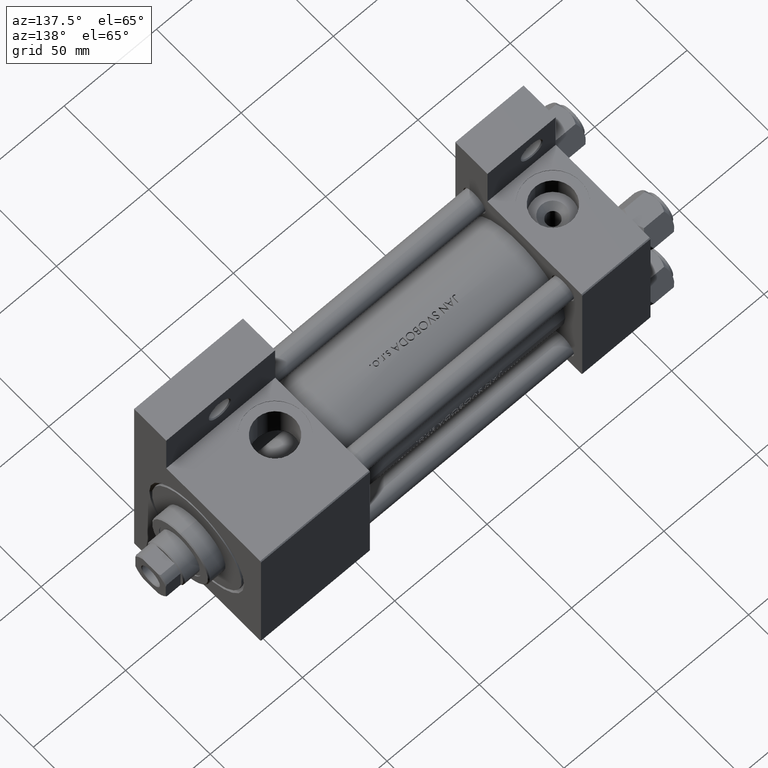
[diagram: clean part render]
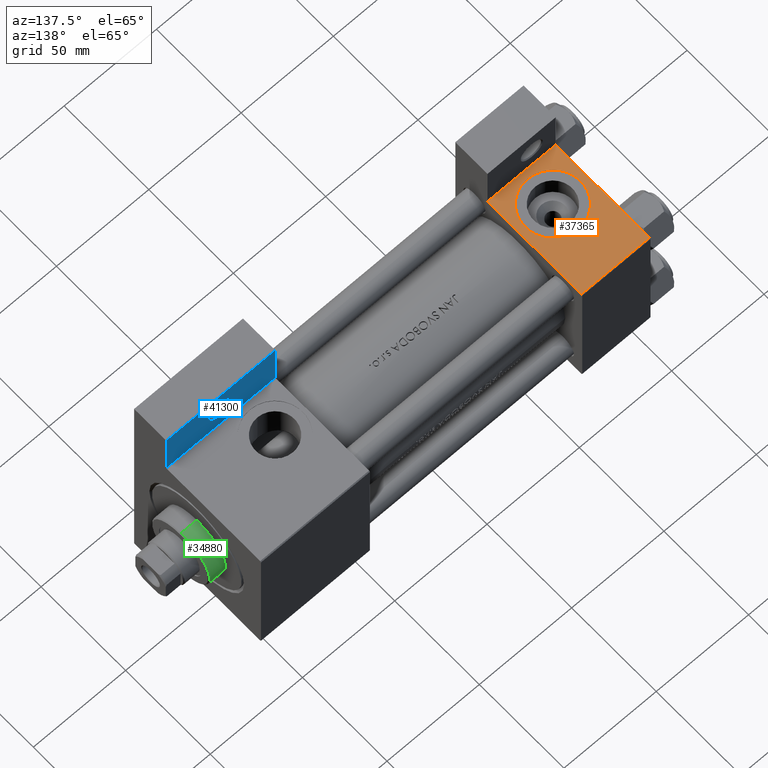
[diagram: same view with three faces highlighted in distinct colors, each labeled with its STEP entity id]
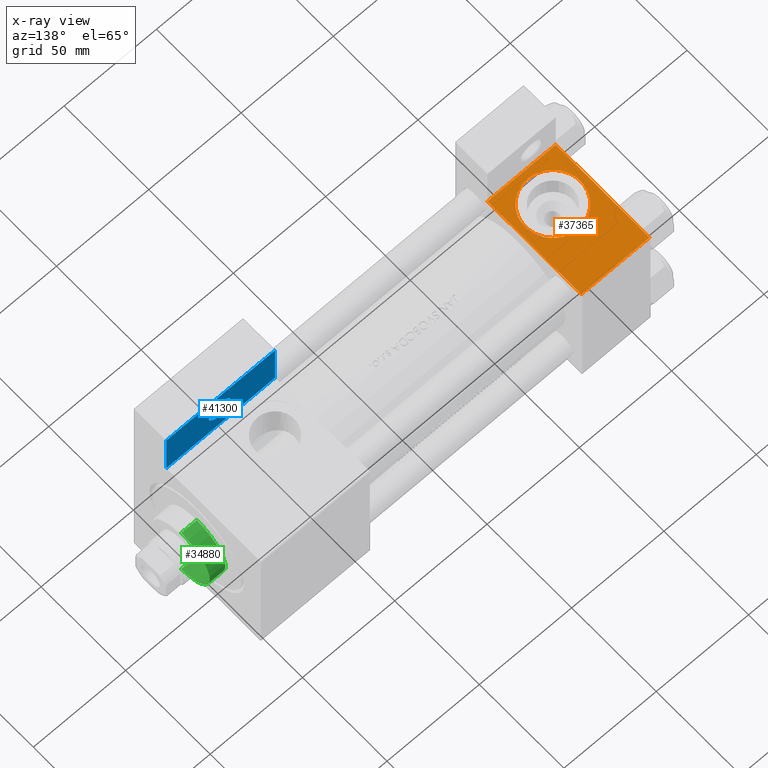
[diagram: x-ray of the same camera — body ghosted, the three highlighted faces saturated]
A machine part, auxiliary view with three faces highlighted in distinct colors.
The next image is the same camera in x-ray (body ghosted, the three faces saturated) — at least one of them is partly hidden behind the body in this view.
Their STEP definitions:

[orange] entity #37365 — the highlighted planar face has unit normal (0, 0, -1).
#794 = LINE ( 'NONE', #7530, #46439 ) ;
#1001 = EDGE_CURVE ( 'NONE', #5162, #34275, #794, .T. ) ;
#1204 = DIRECTION ( 'NONE',  ( 0.000000000000000000, 0.000000000000000000, -1.000000000000000000 ) ) ;
#2792 = EDGE_CURVE ( 'NONE', #46838, #9258, #18689, .T. ) ;
#3631 = ORIENTED_EDGE ( 'NONE', *, *, #1001, .F. ) ;
#5162 = VERTEX_POINT ( 'NONE', #26489 ) ;
#6031 = LINE ( 'NONE', #17260, #37356 ) ;
#6178 = EDGE_CURVE ( 'NONE', #39855, #48175, #19350, .T. ) ;
#7530 = CARTESIAN_POINT ( 'NONE',  ( -7.145701223179000102E-16, -37.50000000000001421, -18.49999999999999645 ) ) ;
#7862 = ORIENTED_EDGE ( 'NONE', *, *, #2792, .F. ) ;
#8623 = CARTESIAN_POINT ( 'NONE',  ( 18.50000000000000000, -37.50000000000000711, -15.00000000000000533 ) ) ;
#9258 = VERTEX_POINT ( 'NONE', #8623 ) ;
#11928 = CARTESIAN_POINT ( 'NONE',  ( 37.00000000000000000, -37.50000000000000711, 36.99999999999999289 ) ) ;
#13135 = AXIS2_PLACEMENT_3D ( 'NONE', #34846, #27618, #1204 ) ;
#13242 = VECTOR ( 'NONE', #18848, 1000.000000000000000 ) ;
#14718 = CARTESIAN_POINT ( 'NONE',  ( 0.000000000000000000, -37.50000000000000711, 36.99999999999999289 ) ) ;
#16753 = DIRECTION ( 'NONE',  ( 0.000000000000000000, -1.000000000000000000, -8.673617379884036705E-17 ) ) ;
#16902 = CARTESIAN_POINT ( 'NONE',  ( 37.00000000000000000, -37.50000000000000711, 37.49999999999999289 ) ) ;
#17260 = CARTESIAN_POINT ( 'NONE',  ( 0.000000000000000000, -37.50000000000000711, 37.49999999999999289 ) ) ;
#17973 = DIRECTION ( 'NONE',  ( 0.000000000000000000, 9.251858538542971581E-17, -1.000000000000000000 ) ) ;
#18065 = CARTESIAN_POINT ( 'NONE',  ( 18.50000000000000355, -37.50000000000000711, 14.99999999999999822 ) ) ;
#18634 = CARTESIAN_POINT ( 'NONE',  ( 37.00000000000000000, -37.50000000000000711, 37.49999999999999289 ) ) ;
#18689 = CIRCLE ( 'NONE', #13135, 15.00000000000000178 ) ;
#18848 = DIRECTION ( 'NONE',  ( -1.000000000000000000, 0.000000000000000000, 0.000000000000000000 ) ) ;
#19146 = EDGE_LOOP ( 'NONE', ( #3631, #25317, #37168, #35212 ) ) ;
#19350 = LINE ( 'NONE', #38268, #13242 ) ;
#20397 = LINE ( 'NONE', #16902, #48501 ) ;
#21929 = EDGE_CURVE ( 'NONE', #9258, #46838, #24848, .T. ) ;
#23974 = CARTESIAN_POINT ( 'NONE',  ( 18.50000000000000000, -37.50000000000000711, -3.469446951953614978E-15 ) ) ;
#24541 = CARTESIAN_POINT ( 'NONE',  ( -7.145701223179004046E-16, -37.50000000000000711, -18.50000000000000355 ) ) ;
#24848 = CIRCLE ( 'NONE', #32789, 15.00000000000000178 ) ;
#25317 = ORIENTED_EDGE ( 'NONE', *, *, #32462, .F. ) ;
#25360 = DIRECTION ( 'NONE',  ( -0.000000000000000000, 1.000000000000000000, 9.251858538542971581E-17 ) ) ;
#26489 = CARTESIAN_POINT ( 'NONE',  ( 37.00000000000000000, -37.50000000000000000, -18.50000000000000355 ) ) ;
#27486 = EDGE_CURVE ( 'NONE', #48175, #34275, #6031, .T. ) ;
#27618 = DIRECTION ( 'NONE',  ( 0.000000000000000000, -1.000000000000000000, -8.673617379884036705E-17 ) ) ;
#28331 = ORIENTED_EDGE ( 'NONE', *, *, #21929, .F. ) ;
#28677 = DIRECTION ( 'NONE',  ( 0.000000000000000000, 0.000000000000000000, -1.000000000000000000 ) ) ;
#32462 = EDGE_CURVE ( 'NONE', #39855, #5162, #20397, .T. ) ;
#32789 = AXIS2_PLACEMENT_3D ( 'NONE', #23974, #16753, #28677 ) ;
#32829 = FACE_OUTER_BOUND ( 'NONE', #19146, .T. ) ;
#33555 = DIRECTION ( 'NONE',  ( 0.000000000000000000, -9.251858538542971581E-17, 1.000000000000000000 ) ) ;
#34275 = VERTEX_POINT ( 'NONE', #24541 ) ;
#34846 = CARTESIAN_POINT ( 'NONE',  ( 18.50000000000000000, -37.50000000000000711, -3.469446951953614978E-15 ) ) ;
#35212 = ORIENTED_EDGE ( 'NONE', *, *, #27486, .T. ) ;
#35569 = DIRECTION ( 'NONE',  ( 0.000000000000000000, 9.251858538542971581E-17, -1.000000000000000000 ) ) ;
#36802 = PLANE ( 'NONE',  #47069 ) ;
#37168 = ORIENTED_EDGE ( 'NONE', *, *, #6178, .T. ) ;
#37356 = VECTOR ( 'NONE', #17973, 1000.000000000000000 ) ;
#37365 = ADVANCED_FACE ( 'NONE', ( #44751, #32829 ), #36802, .F. ) ;
#38268 = CARTESIAN_POINT ( 'NONE',  ( 37.00000000000000000, -37.50000000000000711, 36.99999999999999289 ) ) ;
#39246 = EDGE_LOOP ( 'NONE', ( #28331, #7862 ) ) ;
#39855 = VERTEX_POINT ( 'NONE', #11928 ) ;
#41894 = DIRECTION ( 'NONE',  ( -1.000000000000000000, 0.000000000000000000, 0.000000000000000000 ) ) ;
#44751 = FACE_BOUND ( 'NONE', #39246, .T. ) ;
#46439 = VECTOR ( 'NONE', #41894, 1000.000000000000000 ) ;
#46838 = VERTEX_POINT ( 'NONE', #18065 ) ;
#47069 = AXIS2_PLACEMENT_3D ( 'NONE', #18634, #25360, #33555 ) ;
#48175 = VERTEX_POINT ( 'NONE', #14718 ) ;
#48501 = VECTOR ( 'NONE', #35569, 1000.000000000000000 ) ;

[blue] entity #41300 — the highlighted planar face has unit normal (0, -1, 0).
#2215 = LINE ( 'NONE', #32843, #48071 ) ;
#2474 = ORIENTED_EDGE ( 'NONE', *, *, #20504, .T. ) ;
#3329 = CARTESIAN_POINT ( 'NONE',  ( 211.0000000000000284, -63.50000000000002842, -18.50000000000000000 ) ) ;
#3557 = EDGE_LOOP ( 'NONE', ( #2474, #10667 ) ) ;
#5034 = VERTEX_POINT ( 'NONE', #20386 ) ;
#5186 = VECTOR ( 'NONE', #36993, 1000.000000000000000 ) ;
#5311 = CARTESIAN_POINT ( 'NONE',  ( 152.0000000000000000, -63.50000000000000000, -18.50000000000000000 ) ) ;
#5527 = EDGE_LOOP ( 'NONE', ( #35828, #42272, #22095, #23558 ) ) ;
#5794 = VECTOR ( 'NONE', #13342, 1000.000000000000000 ) ;
#6224 = VERTEX_POINT ( 'NONE', #12090 ) ;
#6307 = DIRECTION ( 'NONE',  ( 0.000000000000000000, 0.000000000000000000, -1.000000000000000000 ) ) ;
#7189 = CARTESIAN_POINT ( 'NONE',  ( 0.000000000000000000, 0.000000000000000000, -18.50000000000000000 ) ) ;
#7432 = DIRECTION ( 'NONE',  ( 0.000000000000000000, 0.000000000000000000, -1.000000000000000000 ) ) ;
#9609 = CIRCLE ( 'NONE', #37421, 5.999500000000046462 ) ;
#10667 = ORIENTED_EDGE ( 'NONE', *, *, #19678, .T. ) ;
#11860 = CARTESIAN_POINT ( 'NONE',  ( 152.0000000000000000, -63.50000000000000000, -18.50000000000000000 ) ) ;
#12090 = CARTESIAN_POINT ( 'NONE',  ( 176.0004999999999598, -51.00000000000000000, -18.50000000000000000 ) ) ;
#13342 = DIRECTION ( 'NONE',  ( 1.000000000000000000, -3.528251137579945613E-16, 0.000000000000000000 ) ) ;
#14087 = CARTESIAN_POINT ( 'NONE',  ( 211.0000000000000000, -37.50000000000000711, -18.50000000000000355 ) ) ;
#14955 = DIRECTION ( 'NONE',  ( 0.000000000000000000, 0.000000000000000000, -1.000000000000000000 ) ) ;
#15177 = PLANE ( 'NONE',  #21795 ) ;
#17300 = CARTESIAN_POINT ( 'NONE',  ( 182.0000000000000000, -51.00000000000000000, -18.50000000000000000 ) ) ;
#17665 = DIRECTION ( 'NONE',  ( 0.000000000000000000, 1.000000000000000000, 0.000000000000000000 ) ) ;
#17844 = LINE ( 'NONE', #33024, #5186 ) ;
#18911 = FACE_BOUND ( 'NONE', #3557, .T. ) ;
#18945 = CARTESIAN_POINT ( 'NONE',  ( 182.0000000000000000, -51.00000000000000000, -18.50000000000000000 ) ) ;
#19678 = EDGE_CURVE ( 'NONE', #6224, #20604, #34194, .T. ) ;
#20386 = CARTESIAN_POINT ( 'NONE',  ( 152.0000000000000000, -37.50000000000000000, -18.50000000000000000 ) ) ;
#20504 = EDGE_CURVE ( 'NONE', #20604, #6224, #9609, .T. ) ;
#20604 = VERTEX_POINT ( 'NONE', #21282 ) ;
#20728 = AXIS2_PLACEMENT_3D ( 'NONE', #18945, #14955, #46055 ) ;
#21282 = CARTESIAN_POINT ( 'NONE',  ( 187.9995000000000402, -51.00000000000000000, -18.50000000000000000 ) ) ;
#21795 = AXIS2_PLACEMENT_3D ( 'NONE', #7189, #7432, #22408 ) ;
#21841 = VERTEX_POINT ( 'NONE', #14087 ) ;
#22095 = ORIENTED_EDGE ( 'NONE', *, *, #43670, .F. ) ;
#22408 = DIRECTION ( 'NONE',  ( -1.000000000000000000, 0.000000000000000000, -0.000000000000000000 ) ) ;
#23558 = ORIENTED_EDGE ( 'NONE', *, *, #40022, .F. ) ;
#30499 = VECTOR ( 'NONE', #30809, 1000.000000000000000 ) ;
#30809 = DIRECTION ( 'NONE',  ( -1.000000000000000000, 4.704334850106593822E-16, -0.000000000000000000 ) ) ;
#31736 = LINE ( 'NONE', #11860, #30499 ) ;
#32843 = CARTESIAN_POINT ( 'NONE',  ( 152.0000000000000000, -63.50000000000000000, -18.50000000000000000 ) ) ;
#33024 = CARTESIAN_POINT ( 'NONE',  ( 211.0000000000000284, -63.50000000000002842, -18.50000000000000000 ) ) ;
#34194 = CIRCLE ( 'NONE', #20728, 5.999500000000046462 ) ;
#35828 = ORIENTED_EDGE ( 'NONE', *, *, #48283, .F. ) ;
#36993 = DIRECTION ( 'NONE',  ( -0.000000000000000000, -1.000000000000000000, -0.000000000000000000 ) ) ;
#37421 = AXIS2_PLACEMENT_3D ( 'NONE', #17300, #6307, #47414 ) ;
#39015 = LINE ( 'NONE', #46963, #5794 ) ;
#39116 = EDGE_CURVE ( 'NONE', #5034, #21841, #39015, .T. ) ;
#40022 = EDGE_CURVE ( 'NONE', #46092, #41703, #31736, .T. ) ;
#41300 = ADVANCED_FACE ( 'NONE', ( #18911, #49266 ), #15177, .F. ) ;
#41703 = VERTEX_POINT ( 'NONE', #5311 ) ;
#42272 = ORIENTED_EDGE ( 'NONE', *, *, #39116, .F. ) ;
#43670 = EDGE_CURVE ( 'NONE', #41703, #5034, #2215, .T. ) ;
#46055 = DIRECTION ( 'NONE',  ( -1.000000000000000000, 0.000000000000000000, 0.000000000000000000 ) ) ;
#46092 = VERTEX_POINT ( 'NONE', #3329 ) ;
#46963 = CARTESIAN_POINT ( 'NONE',  ( 152.0000000000000000, -37.50000000000000000, -18.50000000000000000 ) ) ;
#47414 = DIRECTION ( 'NONE',  ( -1.000000000000000000, 0.000000000000000000, 0.000000000000000000 ) ) ;
#48071 = VECTOR ( 'NONE', #17665, 1000.000000000000000 ) ;
#48283 = EDGE_CURVE ( 'NONE', #21841, #46092, #17844, .T. ) ;
#49266 = FACE_OUTER_BOUND ( 'NONE', #5527, .T. ) ;

[green] entity #34880 — the highlighted cylindrical surface (partial cylindrical patch) has radius 17 mm, axis along (-1, -0, 0).
#1682 = DIRECTION ( 'NONE',  ( -0.000000000000000000, -0.000000000000000000, -1.000000000000000000 ) ) ;
#2110 = DIRECTION ( 'NONE',  ( 1.000000000000000000, 0.000000000000000000, 0.000000000000000000 ) ) ;
#2133 = LINE ( 'NONE', #36497, #10428 ) ;
#7117 = CARTESIAN_POINT ( 'NONE',  ( 0.000000000000000000, 0.000000000000000000, 37.69999999999999574 ) ) ;
#10428 = VECTOR ( 'NONE', #33005, 1000.000000000000000 ) ;
#12160 = CARTESIAN_POINT ( 'NONE',  ( -17.00000000000000000, 0.000000000000000000, 37.19999999999999574 ) ) ;
#12557 = AXIS2_PLACEMENT_3D ( 'NONE', #30297, #45467, #30541 ) ;
#16468 = ORIENTED_EDGE ( 'NONE', *, *, #24275, .T. ) ;
#17005 = ORIENTED_EDGE ( 'NONE', *, *, #27974, .T. ) ;
#18275 = CIRCLE ( 'NONE', #27029, 17.00000000000000000 ) ;
#19656 = LINE ( 'NONE', #32313, #27843 ) ;
#22081 = DIRECTION ( 'NONE',  ( -1.000000000000000000, 0.000000000000000000, 0.000000000000000000 ) ) ;
#22832 = DIRECTION ( 'NONE',  ( -0.000000000000000000, -0.000000000000000000, -1.000000000000000000 ) ) ;
#24275 = EDGE_CURVE ( 'NONE', #47692, #35468, #38840, .T. ) ;
#24558 = DIRECTION ( 'NONE',  ( 0.000000000000000000, 0.000000000000000000, -1.000000000000000000 ) ) ;
#25530 = VERTEX_POINT ( 'NONE', #12160 ) ;
#25678 = ORIENTED_EDGE ( 'NONE', *, *, #36772, .T. ) ;
#26050 = CYLINDRICAL_SURFACE ( 'NONE', #39084, 17.00000000000000000 ) ;
#27029 = AXIS2_PLACEMENT_3D ( 'NONE', #35995, #24558, #2110 ) ;
#27601 = EDGE_CURVE ( 'NONE', #25530, #35468, #19656, .T. ) ;
#27843 = VECTOR ( 'NONE', #1682, 1000.000000000000000 ) ;
#27974 = EDGE_CURVE ( 'NONE', #25530, #47666, #18275, .T. ) ;
#30297 = CARTESIAN_POINT ( 'NONE',  ( 0.000000000000000000, 0.000000000000000000, 28.69999999999999929 ) ) ;
#30541 = DIRECTION ( 'NONE',  ( 1.000000000000000000, 0.000000000000000000, 0.000000000000000000 ) ) ;
#32313 = CARTESIAN_POINT ( 'NONE',  ( -17.00000000000000000, 0.000000000000000000, 37.69999999999999574 ) ) ;
#32774 = CARTESIAN_POINT ( 'NONE',  ( 17.00000000000000000, 2.081899558550500280E-15, 28.69999999999999929 ) ) ;
#33005 = DIRECTION ( 'NONE',  ( -0.000000000000000000, -0.000000000000000000, -1.000000000000000000 ) ) ;
#33402 = CARTESIAN_POINT ( 'NONE',  ( -17.00000000000000000, 0.000000000000000000, 28.69999999999999929 ) ) ;
#34880 = ADVANCED_FACE ( 'NONE', ( #38004 ), #26050, .T. ) ;
#35468 = VERTEX_POINT ( 'NONE', #33402 ) ;
#35995 = CARTESIAN_POINT ( 'NONE',  ( 0.000000000000000000, 0.000000000000000000, 37.19999999999999574 ) ) ;
#36497 = CARTESIAN_POINT ( 'NONE',  ( 17.00000000000000000, 2.081899558550500280E-15, 37.69999999999999574 ) ) ;
#36772 = EDGE_CURVE ( 'NONE', #47666, #47692, #2133, .T. ) ;
#38004 = FACE_OUTER_BOUND ( 'NONE', #49066, .T. ) ;
#38840 = CIRCLE ( 'NONE', #12557, 17.00000000000000000 ) ;
#39084 = AXIS2_PLACEMENT_3D ( 'NONE', #7117, #22832, #22081 ) ;
#39651 = ORIENTED_EDGE ( 'NONE', *, *, #27601, .F. ) ;
#41460 = CARTESIAN_POINT ( 'NONE',  ( 17.00000000000000000, 2.081899558550500280E-15, 37.19999999999999574 ) ) ;
#45467 = DIRECTION ( 'NONE',  ( 0.000000000000000000, 0.000000000000000000, 1.000000000000000000 ) ) ;
#47666 = VERTEX_POINT ( 'NONE', #41460 ) ;
#47692 = VERTEX_POINT ( 'NONE', #32774 ) ;
#49066 = EDGE_LOOP ( 'NONE', ( #17005, #25678, #16468, #39651 ) ) ;